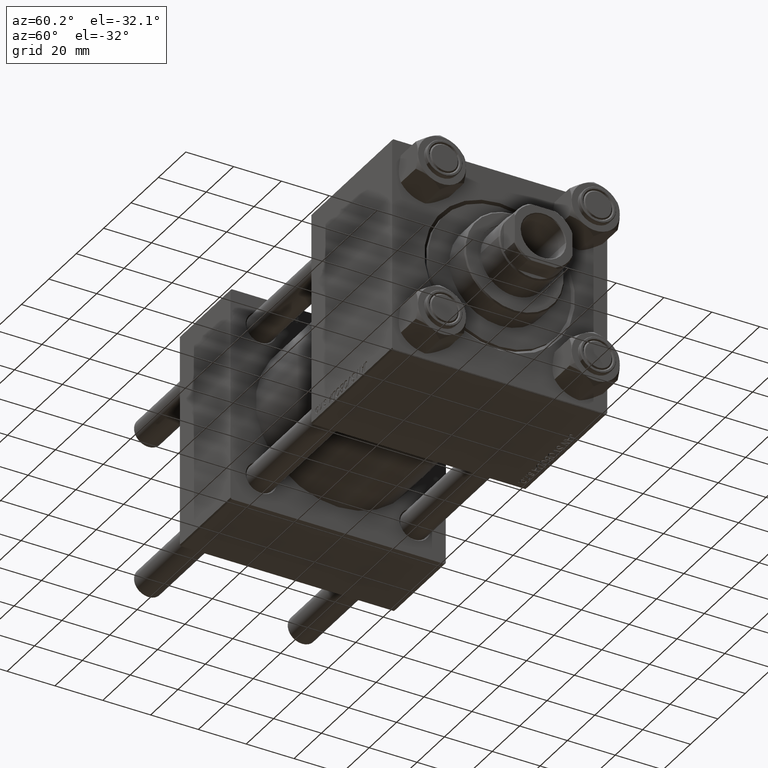
[diagram: clean part render]
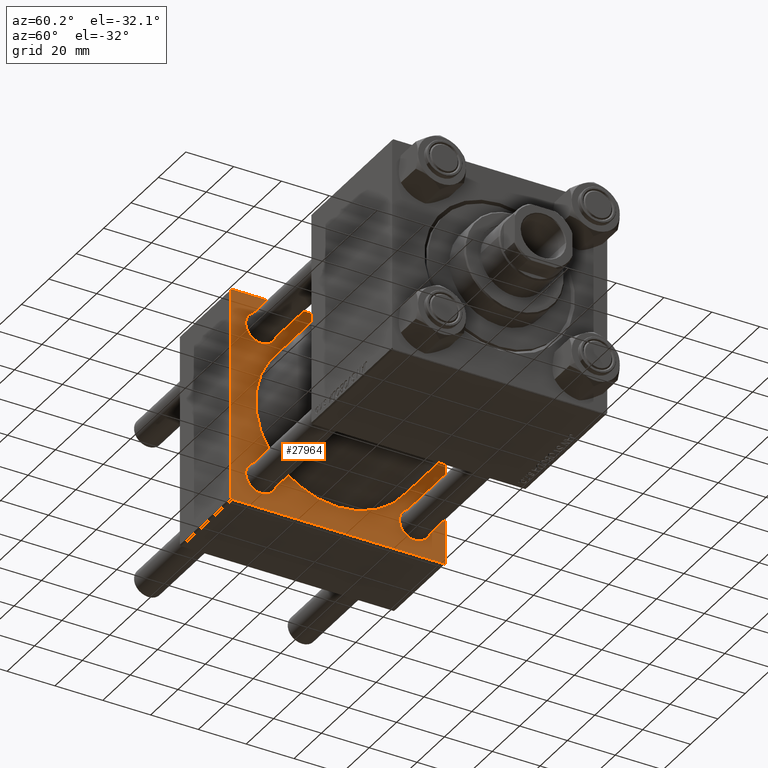
[diagram: same view with one face highlighted and labeled with its STEP entity id]
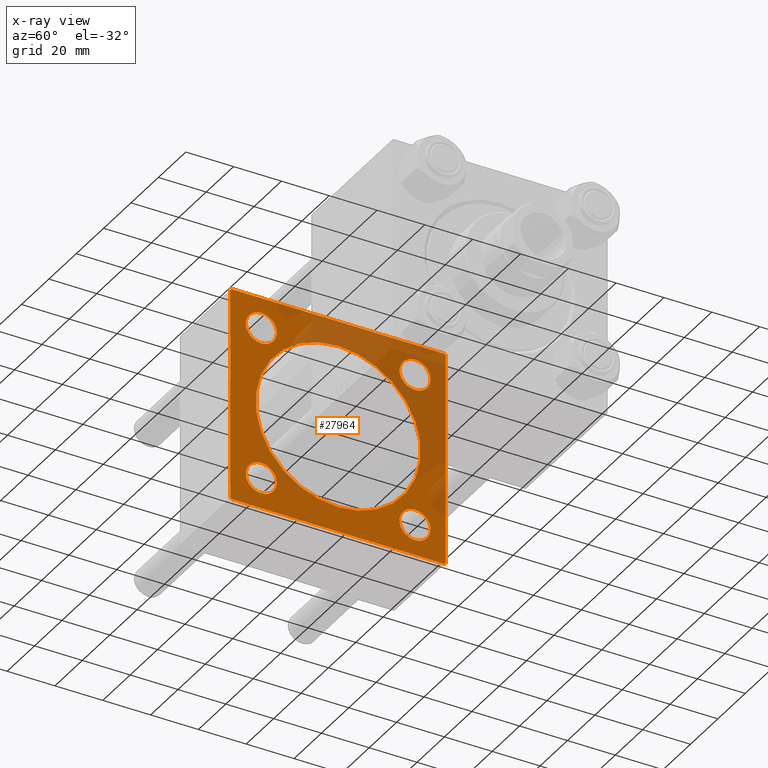
[diagram: x-ray of the same camera — body ghosted, the highlighted face saturated]
A machine part, auxiliary view. The second image highlights one B-rep face of the part: STEP entity #27964.
The next image is the same camera in x-ray: the body ghosted, the highlighted face saturated — about 34% of this face is hidden behind the body in this view.
In plain terms, the highlighted planar face has unit normal (-1, 0, 0).
Its self-contained STEP definition (entity closure, byte-faithful):
#641 = AXIS2_PLACEMENT_3D ( 'NONE', #8119, #46146, #15672 ) ;
#960 = CARTESIAN_POINT ( 'NONE',  ( 37.00000000000000000, 44.99999999999998579, 44.50000000000001421 ) ) ;
#1099 = DIRECTION ( 'NONE',  ( 0.000000000000000000, 0.000000000000000000, 1.000000000000000000 ) ) ;
#1419 = LINE ( 'NONE', #32133, #23554 ) ;
#1731 = VERTEX_POINT ( 'NONE', #10181 ) ;
#1744 = ORIENTED_EDGE ( 'NONE', *, *, #48078, .T. ) ;
#2277 = EDGE_CURVE ( 'NONE', #42237, #16722, #28546, .T. ) ;
#2432 = LINE ( 'NONE', #40690, #16448 ) ;
#2435 = CIRCLE ( 'NONE', #38612, 6.500000000000033751 ) ;
#2453 = VERTEX_POINT ( 'NONE', #33650 ) ;
#2775 = AXIS2_PLACEMENT_3D ( 'NONE', #33594, #6651, #22248 ) ;
#3023 = EDGE_LOOP ( 'NONE', ( #45799, #1744 ) ) ;
#3286 = CARTESIAN_POINT ( 'NONE',  ( 37.00000000000000000, -45.00000000000000711, 44.49999999999997158 ) ) ;
#3798 = CARTESIAN_POINT ( 'NONE',  ( 37.00000000000000000, 32.14999999999999147, 25.64999999999997016 ) ) ;
#4240 = AXIS2_PLACEMENT_3D ( 'NONE', #34959, #27401, #31184 ) ;
#4389 = EDGE_CURVE ( 'NONE', #39636, #2453, #41283, .T. ) ;
#4495 = LINE ( 'NONE', #43762, #26900 ) ;
#5019 = ORIENTED_EDGE ( 'NONE', *, *, #13199, .T. ) ;
#5382 = DIRECTION ( 'NONE',  ( -1.000000000000000000, 0.000000000000000000, -0.000000000000000000 ) ) ;
#5399 = CARTESIAN_POINT ( 'NONE',  ( 37.00000000000000000, -44.49999999999995737, -45.00000000000000000 ) ) ;
#5544 = CARTESIAN_POINT ( 'NONE',  ( 37.00000000000000000, 32.14999999999999147, 32.15000000000000568 ) ) ;
#5888 = VECTOR ( 'NONE', #9530, 1000.000000000000000 ) ;
#6285 = ORIENTED_EDGE ( 'NONE', *, *, #32246, .F. ) ;
#6651 = DIRECTION ( 'NONE',  ( -1.000000000000000000, 0.000000000000000000, -0.000000000000000000 ) ) ;
#6652 = CARTESIAN_POINT ( 'NONE',  ( 37.00000000000000000, -32.14999999999997726, -32.15000000000001279 ) ) ;
#7109 = CIRCLE ( 'NONE', #18341, 34.49999999999999289 ) ;
#7895 = DIRECTION ( 'NONE',  ( 0.000000000000000000, -0.7071067811865474617, 0.7071067811865474617 ) ) ;
#8109 = CARTESIAN_POINT ( 'NONE',  ( 37.00000000000000000, -32.14999999999997726, 32.15000000000001279 ) ) ;
#8119 = CARTESIAN_POINT ( 'NONE',  ( 37.00000000000000000, 32.14999999999999147, 32.15000000000000568 ) ) ;
#8255 = CIRCLE ( 'NONE', #4240, 34.49999999999999289 ) ;
#8597 = DIRECTION ( 'NONE',  ( 1.000000000000000000, -0.000000000000000000, 0.000000000000000000 ) ) ;
#8756 = VERTEX_POINT ( 'NONE', #5399 ) ;
#8894 = CARTESIAN_POINT ( 'NONE',  ( 37.00000000000000000, -32.14999999999997726, -32.15000000000001279 ) ) ;
#8919 = ORIENTED_EDGE ( 'NONE', *, *, #10005, .F. ) ;
#9530 = DIRECTION ( 'NONE',  ( 0.000000000000000000, 0.000000000000000000, -1.000000000000000000 ) ) ;
#10005 = EDGE_CURVE ( 'NONE', #34644, #16058, #7109, .T. ) ;
#10181 = CARTESIAN_POINT ( 'NONE',  ( 37.00000000000000000, 44.99999999999998579, -44.49999999999995737 ) ) ;
#10282 = ORIENTED_EDGE ( 'NONE', *, *, #14149, .T. ) ;
#10744 = EDGE_LOOP ( 'NONE', ( #28921, #8919 ) ) ;
#11926 = DIRECTION ( 'NONE',  ( -1.000000000000000000, 0.000000000000000000, -0.000000000000000000 ) ) ;
#12085 = VERTEX_POINT ( 'NONE', #12588 ) ;
#12485 = VERTEX_POINT ( 'NONE', #34678 ) ;
#12588 = CARTESIAN_POINT ( 'NONE',  ( 37.00000000000000000, -32.14999999999997726, -38.65000000000004832 ) ) ;
#12813 = CARTESIAN_POINT ( 'NONE',  ( 37.00000000000000000, 44.99999999999998579, 45.00000000000001421 ) ) ;
#12934 = DIRECTION ( 'NONE',  ( 0.000000000000000000, 0.000000000000000000, 1.000000000000000000 ) ) ;
#12994 = ORIENTED_EDGE ( 'NONE', *, *, #25521, .T. ) ;
#12996 = DIRECTION ( 'NONE',  ( 0.000000000000000000, -1.000000000000000000, -1.541976423090495387E-16 ) ) ;
#13108 = AXIS2_PLACEMENT_3D ( 'NONE', #24998, #5382, #12934 ) ;
#13199 = EDGE_CURVE ( 'NONE', #12485, #39636, #20255, .T. ) ;
#13291 = AXIS2_PLACEMENT_3D ( 'NONE', #23594, #30662, #37970 ) ;
#13365 = AXIS2_PLACEMENT_3D ( 'NONE', #5544, #27700, #31983 ) ;
#13592 = ORIENTED_EDGE ( 'NONE', *, *, #4389, .T. ) ;
#13676 = VERTEX_POINT ( 'NONE', #960 ) ;
#14149 = EDGE_CURVE ( 'NONE', #31437, #12085, #2435, .T. ) ;
#14303 = EDGE_LOOP ( 'NONE', ( #22576, #44468 ) ) ;
#14367 = VECTOR ( 'NONE', #7895, 1000.000000000000114 ) ;
#14460 = DIRECTION ( 'NONE',  ( 0.000000000000000000, 0.000000000000000000, 1.000000000000000000 ) ) ;
#14490 = ORIENTED_EDGE ( 'NONE', *, *, #40186, .T. ) ;
#14892 = CARTESIAN_POINT ( 'NONE',  ( 37.00000000000000000, 32.14999999999999147, -38.65000000000004121 ) ) ;
#14947 = FACE_BOUND ( 'NONE', #47903, .T. ) ;
#15329 = ORIENTED_EDGE ( 'NONE', *, *, #49198, .T. ) ;
#15672 = DIRECTION ( 'NONE',  ( 0.000000000000000000, 0.000000000000000000, 1.000000000000000000 ) ) ;
#15905 = CARTESIAN_POINT ( 'NONE',  ( 37.00000000000000000, 32.14999999999999147, 38.65000000000004121 ) ) ;
#16058 = VERTEX_POINT ( 'NONE', #27074 ) ;
#16394 = CARTESIAN_POINT ( 'NONE',  ( 37.00000000000000000, 0.000000000000000000, 0.000000000000000000 ) ) ;
#16448 = VECTOR ( 'NONE', #40952, 1000.000000000000000 ) ;
#16722 = VERTEX_POINT ( 'NONE', #20889 ) ;
#17021 = ORIENTED_EDGE ( 'NONE', *, *, #28916, .T. ) ;
#17330 = VERTEX_POINT ( 'NONE', #14892 ) ;
#17613 = CARTESIAN_POINT ( 'NONE',  ( 37.00000000000000000, 4.225031457058367344E-15, -34.49999999999999289 ) ) ;
#17726 = FACE_OUTER_BOUND ( 'NONE', #43999, .T. ) ;
#17984 = VERTEX_POINT ( 'NONE', #35396 ) ;
#18228 = DIRECTION ( 'NONE',  ( -1.000000000000000000, 0.000000000000000000, -0.000000000000000000 ) ) ;
#18341 = AXIS2_PLACEMENT_3D ( 'NONE', #16394, #8597, #31009 ) ;
#19531 = CIRCLE ( 'NONE', #13108, 6.500000000000033751 ) ;
#19604 = EDGE_CURVE ( 'NONE', #16722, #42237, #44321, .T. ) ;
#19605 = EDGE_LOOP ( 'NONE', ( #14490, #39127 ) ) ;
#19818 = CIRCLE ( 'NONE', #41509, 6.500000000000033751 ) ;
#20087 = CARTESIAN_POINT ( 'NONE',  ( 37.00000000000000000, -32.14999999999997726, -25.64999999999997726 ) ) ;
#20255 = LINE ( 'NONE', #47447, #26498 ) ;
#20889 = CARTESIAN_POINT ( 'NONE',  ( 37.00000000000000000, -32.14999999999997726, 38.65000000000004832 ) ) ;
#20964 = VERTEX_POINT ( 'NONE', #23688 ) ;
#22248 = DIRECTION ( 'NONE',  ( -0.000000000000000000, 0.000000000000000000, 1.000000000000000000 ) ) ;
#22576 = ORIENTED_EDGE ( 'NONE', *, *, #2277, .T. ) ;
#22617 = CARTESIAN_POINT ( 'NONE',  ( 37.00000000000000000, -45.00000000000000711, 45.00000000000000000 ) ) ;
#23493 = DIRECTION ( 'NONE',  ( -1.000000000000000000, 0.000000000000000000, -0.000000000000000000 ) ) ;
#23554 = VECTOR ( 'NONE', #12996, 1000.000000000000000 ) ;
#23594 = CARTESIAN_POINT ( 'NONE',  ( 37.00000000000000000, -32.14999999999997726, 32.15000000000001279 ) ) ;
#23688 = CARTESIAN_POINT ( 'NONE',  ( 37.00000000000000000, 32.14999999999999147, -25.64999999999997016 ) ) ;
#23794 = CARTESIAN_POINT ( 'NONE',  ( 37.00000000000000000, -32.14999999999997726, 25.64999999999997726 ) ) ;
#24524 = DIRECTION ( 'NONE',  ( -0.000000000000000000, -0.7071067811865425767, -0.7071067811865524577 ) ) ;
#24629 = LINE ( 'NONE', #12813, #5888 ) ;
#24998 = CARTESIAN_POINT ( 'NONE',  ( 37.00000000000000000, 32.14999999999999147, -32.15000000000000568 ) ) ;
#25190 = EDGE_CURVE ( 'NONE', #13676, #1731, #24629, .T. ) ;
#25521 = EDGE_CURVE ( 'NONE', #17984, #12485, #1419, .T. ) ;
#26024 = FACE_BOUND ( 'NONE', #19605, .T. ) ;
#26052 = VERTEX_POINT ( 'NONE', #15905 ) ;
#26498 = VECTOR ( 'NONE', #24524, 1000.000000000000114 ) ;
#26521 = FACE_BOUND ( 'NONE', #3023, .T. ) ;
#26900 = VECTOR ( 'NONE', #35451, 1000.000000000000114 ) ;
#27074 = CARTESIAN_POINT ( 'NONE',  ( 37.00000000000000000, 0.000000000000000000, 34.49999999999999289 ) ) ;
#27401 = DIRECTION ( 'NONE',  ( 1.000000000000000000, -0.000000000000000000, 0.000000000000000000 ) ) ;
#27700 = DIRECTION ( 'NONE',  ( -1.000000000000000000, 0.000000000000000000, -0.000000000000000000 ) ) ;
#27964 = ADVANCED_FACE ( 'NONE', ( #14947, #26521, #33341, #26024, #37111, #17726 ), #37361, .F. ) ;
#28051 = ORIENTED_EDGE ( 'NONE', *, *, #25190, .F. ) ;
#28546 = CIRCLE ( 'NONE', #13291, 6.500000000000033751 ) ;
#28916 = EDGE_CURVE ( 'NONE', #38413, #1731, #4495, .T. ) ;
#28921 = ORIENTED_EDGE ( 'NONE', *, *, #46753, .F. ) ;
#29565 = CIRCLE ( 'NONE', #641, 6.500000000000033751 ) ;
#30459 = VERTEX_POINT ( 'NONE', #3798 ) ;
#30606 = CARTESIAN_POINT ( 'NONE',  ( 37.00000000000000000, -44.49999999999998579, -45.00000000000000000 ) ) ;
#30662 = DIRECTION ( 'NONE',  ( -1.000000000000000000, 0.000000000000000000, -0.000000000000000000 ) ) ;
#30847 = DIRECTION ( 'NONE',  ( 0.000000000000000000, 0.7071067811865474617, -0.7071067811865474617 ) ) ;
#31009 = DIRECTION ( 'NONE',  ( 0.000000000000000000, 0.000000000000000000, 1.000000000000000000 ) ) ;
#31184 = DIRECTION ( 'NONE',  ( 0.000000000000000000, 0.000000000000000000, 1.000000000000000000 ) ) ;
#31437 = VERTEX_POINT ( 'NONE', #20087 ) ;
#31516 = DIRECTION ( 'NONE',  ( -1.000000000000000000, 0.000000000000000000, -0.000000000000000000 ) ) ;
#31822 = VECTOR ( 'NONE', #49578, 1000.000000000000000 ) ;
#31983 = DIRECTION ( 'NONE',  ( 0.000000000000000000, 0.000000000000000000, 1.000000000000000000 ) ) ;
#32076 = ORIENTED_EDGE ( 'NONE', *, *, #33135, .T. ) ;
#32133 = CARTESIAN_POINT ( 'NONE',  ( 37.00000000000000000, 44.99999999999998579, 45.00000000000001421 ) ) ;
#32246 = EDGE_CURVE ( 'NONE', #38413, #8756, #2432, .T. ) ;
#33135 = EDGE_CURVE ( 'NONE', #2453, #8756, #34624, .T. ) ;
#33341 = FACE_BOUND ( 'NONE', #14303, .T. ) ;
#33594 = CARTESIAN_POINT ( 'NONE',  ( 37.00000000000000000, 0.000000000000000000, 0.000000000000000000 ) ) ;
#33650 = CARTESIAN_POINT ( 'NONE',  ( 37.00000000000000000, -45.00000000000000000, -44.49999999999995737 ) ) ;
#34624 = LINE ( 'NONE', #30606, #46246 ) ;
#34644 = VERTEX_POINT ( 'NONE', #17613 ) ;
#34678 = CARTESIAN_POINT ( 'NONE',  ( 37.00000000000000000, -44.49999999999995737, 45.00000000000000000 ) ) ;
#34959 = CARTESIAN_POINT ( 'NONE',  ( 37.00000000000000000, 0.000000000000000000, 0.000000000000000000 ) ) ;
#35327 = DIRECTION ( 'NONE',  ( 0.000000000000000000, 0.000000000000000000, 1.000000000000000000 ) ) ;
#35396 = CARTESIAN_POINT ( 'NONE',  ( 37.00000000000000000, 44.49999999999998579, 45.00000000000001421 ) ) ;
#35418 = EDGE_CURVE ( 'NONE', #26052, #30459, #48724, .T. ) ;
#35451 = DIRECTION ( 'NONE',  ( -0.000000000000000000, 0.7071067811865474617, 0.7071067811865474617 ) ) ;
#35578 = CARTESIAN_POINT ( 'NONE',  ( 37.00000000000000000, 32.14999999999999147, -32.15000000000000568 ) ) ;
#37085 = AXIS2_PLACEMENT_3D ( 'NONE', #8109, #31516, #46877 ) ;
#37111 = FACE_BOUND ( 'NONE', #10744, .T. ) ;
#37352 = EDGE_CURVE ( 'NONE', #17330, #20964, #19818, .T. ) ;
#37361 = PLANE ( 'NONE',  #2775 ) ;
#37970 = DIRECTION ( 'NONE',  ( 0.000000000000000000, 0.000000000000000000, 1.000000000000000000 ) ) ;
#38413 = VERTEX_POINT ( 'NONE', #40868 ) ;
#38605 = ORIENTED_EDGE ( 'NONE', *, *, #42436, .T. ) ;
#38612 = AXIS2_PLACEMENT_3D ( 'NONE', #6652, #18228, #14460 ) ;
#38871 = AXIS2_PLACEMENT_3D ( 'NONE', #8894, #11926, #35327 ) ;
#39127 = ORIENTED_EDGE ( 'NONE', *, *, #35418, .T. ) ;
#39636 = VERTEX_POINT ( 'NONE', #3286 ) ;
#40186 = EDGE_CURVE ( 'NONE', #30459, #26052, #29565, .T. ) ;
#40690 = CARTESIAN_POINT ( 'NONE',  ( 37.00000000000000000, 44.99999999999998579, -44.99999999999998579 ) ) ;
#40868 = CARTESIAN_POINT ( 'NONE',  ( 37.00000000000000000, 44.49999999999998579, -44.99999999999998579 ) ) ;
#40952 = DIRECTION ( 'NONE',  ( 0.000000000000000000, -1.000000000000000000, -1.541976423090495633E-16 ) ) ;
#41283 = LINE ( 'NONE', #22617, #31822 ) ;
#41509 = AXIS2_PLACEMENT_3D ( 'NONE', #35578, #23493, #1099 ) ;
#42237 = VERTEX_POINT ( 'NONE', #23794 ) ;
#42436 = EDGE_CURVE ( 'NONE', #13676, #17984, #49453, .T. ) ;
#43762 = CARTESIAN_POINT ( 'NONE',  ( 37.00000000000000000, 44.99999999999998579, -44.49999999999998579 ) ) ;
#43999 = EDGE_LOOP ( 'NONE', ( #6285, #17021, #28051, #38605, #12994, #5019, #13592, #32076 ) ) ;
#44321 = CIRCLE ( 'NONE', #37085, 6.500000000000033751 ) ;
#44468 = ORIENTED_EDGE ( 'NONE', *, *, #19604, .T. ) ;
#45434 = CARTESIAN_POINT ( 'NONE',  ( 37.00000000000000000, 44.49999999999998579, 45.00000000000001421 ) ) ;
#45799 = ORIENTED_EDGE ( 'NONE', *, *, #37352, .T. ) ;
#46146 = DIRECTION ( 'NONE',  ( -1.000000000000000000, 0.000000000000000000, -0.000000000000000000 ) ) ;
#46246 = VECTOR ( 'NONE', #30847, 1000.000000000000114 ) ;
#46753 = EDGE_CURVE ( 'NONE', #16058, #34644, #8255, .T. ) ;
#46877 = DIRECTION ( 'NONE',  ( 0.000000000000000000, 0.000000000000000000, 1.000000000000000000 ) ) ;
#46889 = CIRCLE ( 'NONE', #38871, 6.500000000000033751 ) ;
#47447 = CARTESIAN_POINT ( 'NONE',  ( 37.00000000000000000, -45.00000000000000711, 44.49999999999997158 ) ) ;
#47903 = EDGE_LOOP ( 'NONE', ( #15329, #10282 ) ) ;
#48078 = EDGE_CURVE ( 'NONE', #20964, #17330, #19531, .T. ) ;
#48724 = CIRCLE ( 'NONE', #13365, 6.500000000000033751 ) ;
#49198 = EDGE_CURVE ( 'NONE', #12085, #31437, #46889, .T. ) ;
#49453 = LINE ( 'NONE', #45434, #14367 ) ;
#49578 = DIRECTION ( 'NONE',  ( 0.000000000000000000, 7.709882115452476934E-17, -1.000000000000000000 ) ) ;